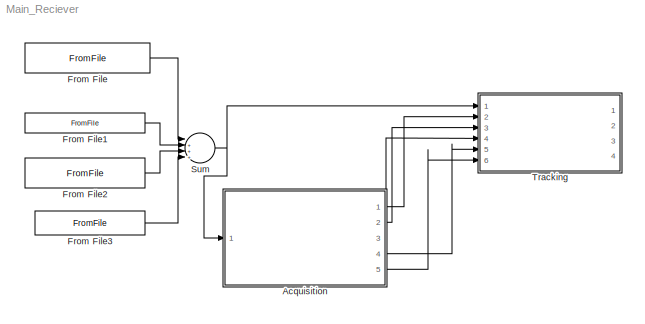
MODEL Main_Reciever
KIND model
BLOCK [ModelReference] Acquisition
  ModelNameDialog = Acquisition.slx
  ModelReferenceVersion = 1.586
  Ports = [1, 5]
  SID = 15
  Variant = off
BLOCK [FromFile] From File
  FileName = Tracking_Test_4sig_1.mat
  SID = 23
  SampleTime = 0
BLOCK [FromFile] From File1
  FileName = Tracking_Test_4sig_2.mat
  SID = 24
  SampleTime = 0
BLOCK [FromFile] From File2
  FileName = Tracking_Test_4sig_3.mat
  SID = 25
  SampleTime = 0
BLOCK [FromFile] From File3
  FileName = Tracking_Test_4sig_4.mat
  SID = 26
  SampleTime = 0
BLOCK [Sum] Sum
  IconShape = round
  InputSameDT = off
  Inputs = |++++|
  OutDataTypeStr = Inherit: Inherit via internal rule
  Ports = [4, 1]
  SID = 27
  SaturateOnIntegerOverflow = off
BLOCK [ModelReference] Tracking
  ModelNameDialog = Tracking.slx
  ModelReferenceVersion = 1.592
  Ports = [6, 4]
  SID = 16
  Variant = off
LINE Acquisition:1 -> Tracking:2
LINE Acquisition:2 -> Tracking:3
LINE Acquisition:3 -> Tracking:4
LINE Acquisition:4 -> Tracking:5
LINE Acquisition:5 -> Tracking:6
LINE From File1:1 -> Sum:2
LINE From File2:1 -> Sum:3
LINE From File3:1 -> Sum:4
LINE From File:1 -> Sum:1
NET Sum:1 -> Acquisition:1, Tracking:1
note: NET lines group one-source signal fan-out (src -> all destinations, sorted); 1:1 wires keep LINE
